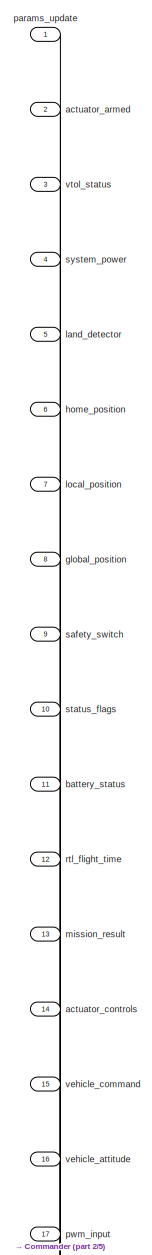
[diagram: root canvas - part 1/5, top left region]
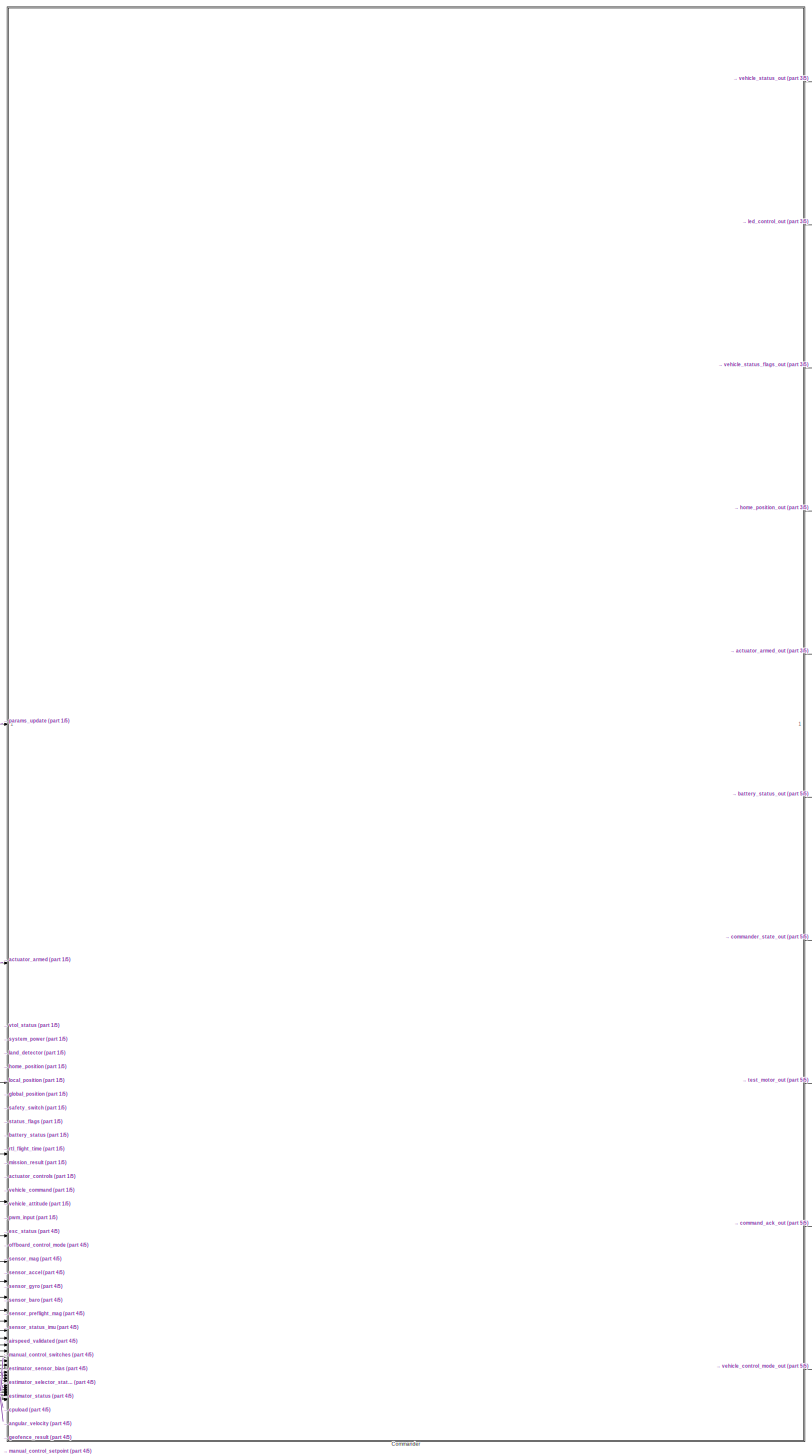
[diagram: root canvas - part 2/5, center side, full height]
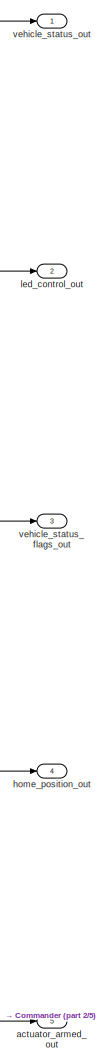
[diagram: root canvas - part 3/5, top right region]
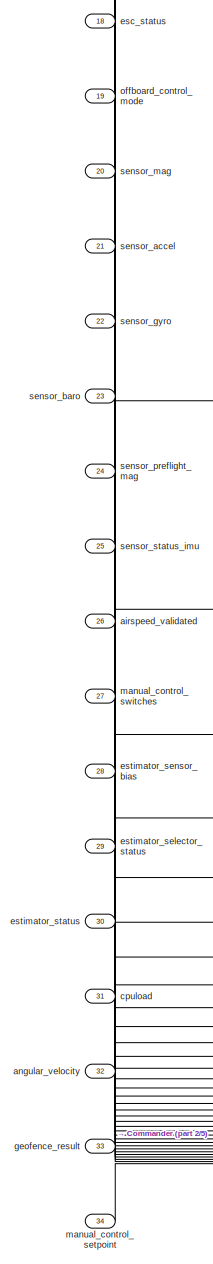
[diagram: root canvas - part 4/5, bottom left region]
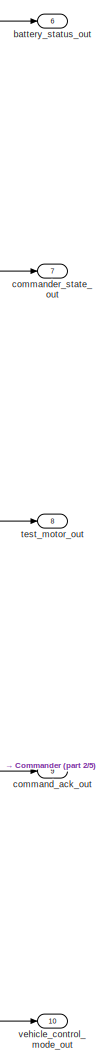
[diagram: root canvas - part 5/5, bottom right region]
MODEL slx_cd13cc20a061
KIND model
CONFIG AbsTol = auto
CONFIG EnableMultiTasking = off
CONFIG FixedStep = 0.5
CONFIG MaxStep = auto
CONFIG MinStep = auto
CONFIG RelTol = 1e-3
CONFIG SampleTimeConstraint = Unconstrained
CONFIG SolverName = FixedStepAuto
CONFIG StartTime = 0.0
CONFIG StopTime = 100
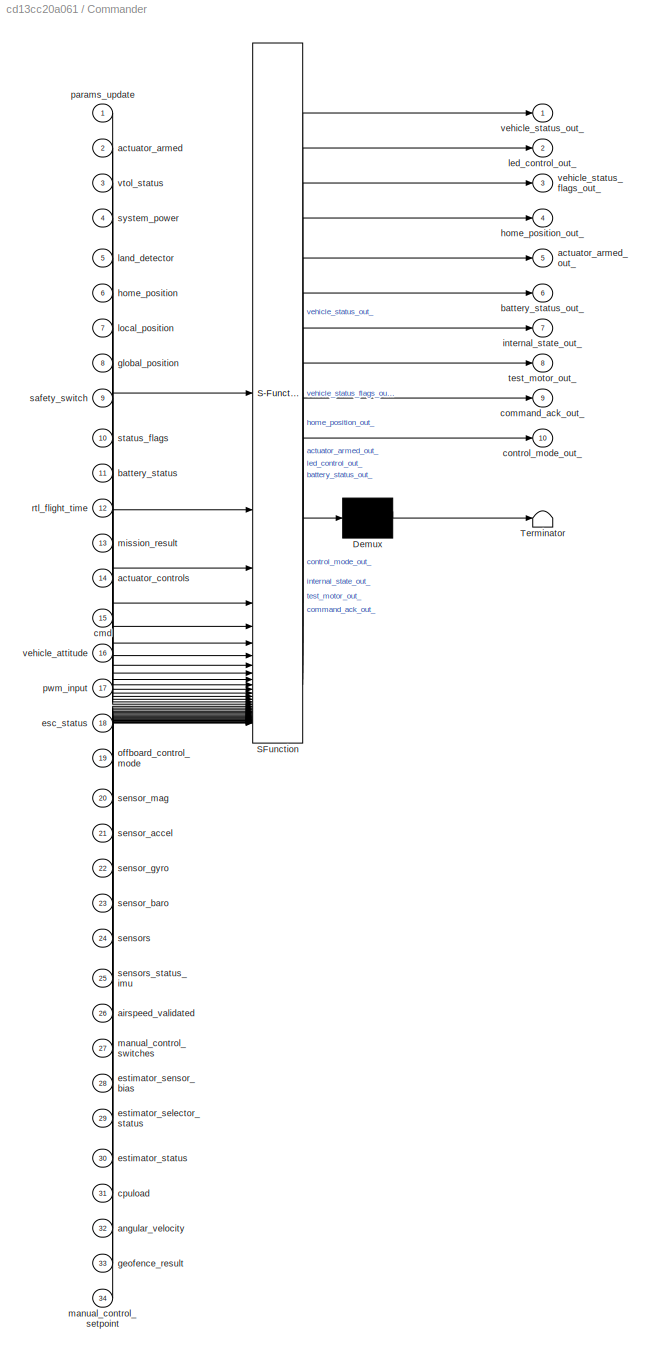
BLOCK [SubSystem] Commander
  ErrorFcn = Stateflow.Translate.translate
  PermitHierarchicalResolution = ExplicitOnly
  SFBlockType = Chart
  TreatAsAtomicUnit = on
BLOCK [Demux] Commander/ Demux 
  Outputs = 1
BLOCK [S-Function] Commander/ SFunction 
  EnableBusSupport = off
  FunctionName = sf_sfun
  Parameters = BAT_CRIT_THR,BAT_LOW_THR,CBRK_AIRSPD_CHK,CBRK_ENGINEFAIL,CBRK_FLIGHTTERM,CBRK_SUPPLY_CHK,CBRK_USB_CHK,CBRK_VELPOSERR,CBRK_VTOLARMING,COM_ARM_ARSP_EN,COM_ARM_AUTH_ID,COM_ARM_AUTH_MET,COM_ARM_AUTH_REQ,COM_ARM_AUTH_TO,COM_ARM_CHK_ESCS,COM_ARM_EKF_HGT,COM_ARM_EKF_POS,COM_ARM_EKF_VEL,COM_ARM_EKF_YAW,COM_ARM_IMU_ACC,COM_ARM_IMU_GYR,COM_ARM_MAG_ANG,COM_ARM_MAG_STR,COM_ARM_MIS_REQ,COM_ARM_SWISBTN,COM_ARM_...<+1529ch>
  PortCounts = [34 11]
  SFcnIsStateOwnerBlock = off
  SFunctionDeploymentMode = off
  Tag = Stateflow S-Function 3
BLOCK [Terminator] Commander/ Terminator 
BLOCK [Inport] Commander/actuator_armed
  Port = 2
BLOCK [Outport] Commander/actuator_armed_out_
  Port = 5
BLOCK [Inport] Commander/actuator_controls
  Port = 14
BLOCK [Inport] Commander/airspeed_validated
  Port = 26
BLOCK [Inport] Commander/angular_velocity
  Port = 32
BLOCK [Inport] Commander/battery_status
  Port = 11
BLOCK [Outport] Commander/battery_status_out_
  Port = 6
BLOCK [Inport] Commander/cmd
  Port = 15
BLOCK [Outport] Commander/command_ack_out_
  Port = 9
BLOCK [Outport] Commander/control_mode_out_
  Port = 10
BLOCK [Inport] Commander/cpuload
  Port = 31
BLOCK [Inport] Commander/esc_status
  Port = 18
BLOCK [Inport] Commander/estimator_selector_status
  Port = 29
BLOCK [Inport] Commander/estimator_sensor_bias
  Port = 28
BLOCK [Inport] Commander/estimator_status
  Port = 30
BLOCK [Inport] Commander/geofence_result
  Port = 33
BLOCK [Inport] Commander/global_position
  Port = 8
BLOCK [Inport] Commander/home_position
  Port = 6
BLOCK [Outport] Commander/home_position_out_
  Port = 4
BLOCK [Outport] Commander/internal_state_out_
  Port = 7
BLOCK [Inport] Commander/land_detector
  Port = 5
BLOCK [Outport] Commander/led_control_out_
  Port = 2
BLOCK [Inport] Commander/local_position
  Port = 7
BLOCK [Inport] Commander/manual_control_setpoint
  Port = 34
BLOCK [Inport] Commander/manual_control_switches
  Port = 27
BLOCK [Inport] Commander/mission_result
  Port = 13
BLOCK [Inport] Commander/offboard_control_mode
  Port = 19
BLOCK [Inport] Commander/params_update
BLOCK [Inport] Commander/pwm_input
  Port = 17
BLOCK [Inport] Commander/rtl_flight_time
  Port = 12
BLOCK [Inport] Commander/safety_switch
  Port = 9
BLOCK [Inport] Commander/sensor_accel
  Port = 21
BLOCK [Inport] Commander/sensor_baro
  Port = 23
BLOCK [Inport] Commander/sensor_gyro
  Port = 22
BLOCK [Inport] Commander/sensor_mag
  Port = 20
BLOCK [Inport] Commander/sensors
  Port = 24
BLOCK [Inport] Commander/sensors_status_imu
  Port = 25
BLOCK [Inport] Commander/status_flags
  Port = 10
BLOCK [Inport] Commander/system_power
  Port = 4
BLOCK [Outport] Commander/test_motor_out_
  Port = 8
BLOCK [Inport] Commander/vehicle_attitude
  Port = 16
BLOCK [Outport] Commander/vehicle_status_flags_out_
  Port = 3
BLOCK [Outport] Commander/vehicle_status_out_
BLOCK [Inport] Commander/vtol_status
  Port = 3
BLOCK [Inport] actuator_armed
  BusOutputAsStruct = on
  OutDataTypeStr = Bus: px4_actuator_armed
  Port = 2
BLOCK [Outport] actuator_armed_out
  BusOutputAsStruct = on
  OutDataTypeStr = Bus: px4_actuator_armed
  Port = 5
BLOCK [Inport] actuator_controls
  BusOutputAsStruct = on
  OutDataTypeStr = Bus: px4_actuator_controls
  Port = 14
BLOCK [Inport] airspeed_validated
  BusOutputAsStruct = on
  LockScale = on
  OutDataTypeStr = Bus: px4_airspeed_validated
  Port = 26
BLOCK [Inport] angular_velocity
  BusOutputAsStruct = on
  LockScale = on
  OutDataTypeStr = Bus: px4_vehicle_angular_velocity
  Port = 32
BLOCK [Inport] battery_status
  BusOutputAsStruct = on
  OutDataTypeStr = Bus: px4_battery_status
  Port = 11
BLOCK [Outport] battery_status_out
  BusOutputAsStruct = on
  OutDataTypeStr = Bus: px4_battery_status
  Port = 6
BLOCK [Outport] command_ack_out
  BusOutputAsStruct = on
  OutDataTypeStr = Bus: px4_vehicle_command_ack
  Port = 9
BLOCK [Outport] commander_state_out
  BusOutputAsStruct = on
  OutDataTypeStr = Bus: px4_commander_state
  Port = 7
BLOCK [Inport] cpuload
  BusOutputAsStruct = on
  LockScale = on
  OutDataTypeStr = Bus: px4_cpuload
  Port = 31
BLOCK [Inport] esc_status
  BusOutputAsStruct = on
  OutDataTypeStr = Bus: px4_esc_status
  Port = 18
BLOCK [Inport] estimator_selector_status
  BusOutputAsStruct = on
  LockScale = on
  OutDataTypeStr = Bus: px4_estimator_selector_status
  Port = 29
BLOCK [Inport] estimator_sensor_bias
  BusOutputAsStruct = on
  LockScale = on
  OutDataTypeStr = Bus: px4_estimator_sensor_bias
  Port = 28
BLOCK [Inport] estimator_status
  BusOutputAsStruct = on
  LockScale = on
  OutDataTypeStr = Bus: px4_estimator_status
  Port = 30
BLOCK [Inport] geofence_result
  BusOutputAsStruct = on
  LockScale = on
  OutDataTypeStr = Bus: px4_geofence_result
  Port = 33
BLOCK [Inport] global_position
  BusOutputAsStruct = on
  OutDataTypeStr = Bus: px4_vehicle_global_position
  Port = 8
BLOCK [Inport] home_position
  BusOutputAsStruct = on
  OutDataTypeStr = Bus: px4_home_position
  Port = 6
BLOCK [Outport] home_position_out
  BusOutputAsStruct = on
  OutDataTypeStr = Bus: px4_home_position
  Port = 4
BLOCK [Inport] land_detector
  BusOutputAsStruct = on
  OutDataTypeStr = Bus: px4_vehicle_land_detected
  Port = 5
BLOCK [Outport] led_control_out
  BusOutputAsStruct = on
  OutDataTypeStr = Bus: px4_led_control
  Port = 2
BLOCK [Inport] local_position
  BusOutputAsStruct = on
  OutDataTypeStr = Bus: px4_vehicle_local_position
  Port = 7
BLOCK [Inport] manual_control_setpoint
  BusOutputAsStruct = on
  LockScale = on
  OutDataTypeStr = Bus: px4_manual_control_setpoint
  Port = 34
BLOCK [Inport] manual_control_switches
  BusOutputAsStruct = on
  LockScale = on
  OutDataTypeStr = Bus: px4_manual_control_switches
  Port = 27
BLOCK [Inport] mission_result
  BusOutputAsStruct = on
  OutDataTypeStr = Bus: px4_mission_result
  Port = 13
BLOCK [Inport] offboard_control_mode
  BusOutputAsStruct = on
  OutDataTypeStr = Bus: px4_offboard_control_mode
  Port = 19
BLOCK [Inport] params_update
  BusOutputAsStruct = on
  OutDataTypeStr = Bus: px4_parameter_update
BLOCK [Inport] pwm_input
  BusOutputAsStruct = on
  OutDataTypeStr = Bus: px4_pwm_input
  Port = 17
BLOCK [Inport] rtl_flight_time
  BusOutputAsStruct = on
  OutDataTypeStr = Bus: px4_rtl_flight_time
  Port = 12
BLOCK [Inport] safety_switch
  BusOutputAsStruct = on
  OutDataTypeStr = Bus: px4_safety
  Port = 9
BLOCK [Inport] sensor_accel
  BusOutputAsStruct = on
  OutDataTypeStr = Bus: px4_sensor_accel
  Port = 21
  PortDimensions = 4
BLOCK [Inport] sensor_baro
  BusOutputAsStruct = on
  OutDataTypeStr = Bus: px4_sensor_baro
  Port = 23
  PortDimensions = 4
BLOCK [Inport] sensor_gyro
  BusOutputAsStruct = on
  OutDataTypeStr = Bus: px4_sensor_gyro
  Port = 22
  PortDimensions = 4
BLOCK [Inport] sensor_mag
  BusOutputAsStruct = on
  OutDataTypeStr = Bus: px4_sensor_mag
  Port = 20
  PortDimensions = 4
BLOCK [Inport] sensor_preflight_mag
  BusOutputAsStruct = on
  LockScale = on
  OutDataTypeStr = Bus: px4_sensor_preflight_mag
  Port = 24
BLOCK [Inport] sensor_status_imu
  BusOutputAsStruct = on
  LockScale = on
  OutDataTypeStr = Bus: px4_sensors_status_imu
  Port = 25
BLOCK [Inport] status_flags
  BusOutputAsStruct = on
  OutDataTypeStr = Bus: px4_vehicle_status_flags
  Port = 10
BLOCK [Inport] system_power
  BusOutputAsStruct = on
  OutDataTypeStr = Bus: px4_system_power
  Port = 4
BLOCK [Outport] test_motor_out
  BusOutputAsStruct = on
  OutDataTypeStr = Bus: px4_test_motor
  Port = 8
BLOCK [Inport] vehicle_attitude
  BusOutputAsStruct = on
  OutDataTypeStr = Bus: px4_vehicle_attitude
  Port = 16
BLOCK [Inport] vehicle_command
  BusOutputAsStruct = on
  OutDataTypeStr = Bus: px4_vehicle_command
  Port = 15
BLOCK [Outport] vehicle_control_mode_out
  BusOutputAsStruct = on
  OutDataTypeStr = Bus: px4_vehicle_control_mode
  Port = 10
BLOCK [Outport] vehicle_status_flags_out
  BusOutputAsStruct = on
  OutDataTypeStr = Bus: px4_vehicle_status_flags
  Port = 3
BLOCK [Outport] vehicle_status_out
  BusOutputAsStruct = on
  OutDataTypeStr = Bus: px4_vehicle_status
BLOCK [Inport] vtol_status
  BusOutputAsStruct = on
  OutDataTypeStr = Bus: px4_vtol_vehicle_status
  Port = 3
LINE Commander:1 -> vehicle_status_out:1
LINE Commander:10 -> vehicle_control_mode_out:1
LINE Commander:2 -> led_control_out:1
LINE Commander:3 -> vehicle_status_flags_out:1
LINE Commander:4 -> home_position_out:1
LINE Commander:5 -> actuator_armed_out:1
LINE Commander:6 -> battery_status_out:1
LINE Commander:7 -> commander_state_out:1
LINE Commander:8 -> test_motor_out:1
LINE Commander:9 -> command_ack_out:1
LINE actuator_armed:1 -> Commander:2
LINE actuator_controls:1 -> Commander:14
LINE airspeed_validated:1 -> Commander:26
LINE angular_velocity:1 -> Commander:32
LINE battery_status:1 -> Commander:11
LINE cpuload:1 -> Commander:31
LINE esc_status:1 -> Commander:18
LINE estimator_selector_status:1 -> Commander:29
LINE estimator_sensor_bias:1 -> Commander:28
LINE estimator_status:1 -> Commander:30
LINE geofence_result:1 -> Commander:33
LINE global_position:1 -> Commander:8
LINE home_position:1 -> Commander:6
LINE land_detector:1 -> Commander:5
LINE local_position:1 -> Commander:7
LINE manual_control_setpoint:1 -> Commander:34
LINE manual_control_switches:1 -> Commander:27
LINE mission_result:1 -> Commander:13
LINE offboard_control_mode:1 -> Commander:19
LINE params_update:1 -> Commander:1
LINE pwm_input:1 -> Commander:17
LINE rtl_flight_time:1 -> Commander:12
LINE safety_switch:1 -> Commander:9
LINE sensor_accel:1 -> Commander:21
LINE sensor_baro:1 -> Commander:23
LINE sensor_gyro:1 -> Commander:22
LINE sensor_mag:1 -> Commander:20
LINE sensor_preflight_mag:1 -> Commander:24
LINE sensor_status_imu:1 -> Commander:25
LINE status_flags:1 -> Commander:10
LINE system_power:1 -> Commander:4
LINE vehicle_attitude:1 -> Commander:16
LINE vehicle_command:1 -> Commander:15
LINE vtol_status:1 -> Commander:3
CHART Commander states=184 transitions=786
  STATE_LABEL 'ret = is_vtol_tailsitter(current_status)'
  STATE_LABEL 'SCRIPT:\nfunction ret = is_vtol_tailsitter(current_status)\n\nret = (current_status.system_type == VEHICLE_TYPE_VTOL_DUOROTOR || ...\n    current_status.system_type == VEHICLE_TYPE_VTOL_QUADROTOR);\n\nend\n\n\n'
  STATE_LABEL 'ret = is_rotary_wing(current_status)'
  STATE_LABEL 'SCRIPT:\nfunction ret = is_rotary_wing(current_status)\n\nret = is_multirotor(current_status) || ...\n    (current_status.system_type == VEHICLE_TYPE_HELICOPTER) || ...\n    (current_status.system_type == VEHICLE_TYPE_COAXIAL);\n\nend\n\n\n'
  STATE_LABEL 'ret = is_vtol(current_status)'
  STATE_LABEL 'SCRIPT:\nfunction ret = is_vtol(current_status)\n\nret = (current_status.system_type == VEHICLE_TYPE_VTOL_DUOROTOR || ...\n    current_status.system_type == VEHICLE_TYPE_VTOL_QUADROTOR || ...\n    current_status.system_type == VEHICLE_TYPE_VTOL_TILTROTOR || ...\n    current_status.system_type == VEHICLE_TYPE_VTOL_RESERVED2 || ...\n    current_status.system_type == VEHICLE_TYPE_VTOL_RESERVED3 || ...\n    c...<+135ch>'
  STATE_LABEL 'initialize\nen:\ncommander_init();\nmission_init();\nled_init();\nbuzzer_init();\nget_circuit_breaker_params();\nvehicle_type_init();\narm_auth_init();'
  STATE_LABEL '1. 后续删除commander_init()中的zero函数'
  STATE_LABEL 'commander_init'
  STATE_LABEL 'SCRIPT:\nfunction commander_init()\n\nactuator_armed_out_ = actuator_armed;\nbattery_status_out_ = battery_status;\nhome_position_out_ = home_position;\ncontrol_mode_out_ = px4_vehicle_control_mode_zero();\ninternal_state_out_ = px4_commander_state_zero();\n\n% default landed\nland_detector_.landed = true;\n\n% XXX for now just set sensors as initialized\nvehicle_status_flags_out_.condition_system_sensors_init...<+1041ch>'
  STATE_LABEL 'mission_init'
  STATE_LABEL 'SCRIPT:\nfunction mission_init()\n\n% init mission state, do it here to allow navigator to use stored mission even if mavlink failed to start\n% there need to publish "mission_s topic" !!!\n\nend\n\n\n'
  STATE_LABEL 'buzzer_init'
  STATE_LABEL 'SCRIPT:\nfunction buzzer_init()\n\ntune_durations_(uint8(PX4_TUNE_CONTROL.TUNE_ID_NOTIFY_POSITIVE)) = 800000;\ntune_durations_(uint8(PX4_TUNE_CONTROL.TUNE_ID_NOTIFY_NEGATIVE)) = 900000;\ntune_durations_(uint8(PX4_TUNE_CONTROL.TUNE_ID_NOTIFY_NEUTRAL)) = 500000;\ntune_durations_(uint8(PX4_TUNE_CONTROL.TUNE_ID_ARMING_WARNING)) = 3000000;\ntune_durations_(uint8(PX4_TUNE_CONTROL.TUNE_ID_HOME_SET)) = 800000;\nt...<+350ch>'
  STATE_LABEL 'led_init'
  STATE_LABEL 'SCRIPT:\nfunction led_init()\n\nblink_msg_end = 0;\nled_control_out_.led_mask = 0xff;\nled_control_out_.mode = uint8(PX4_LED_CONTROL.MODE_OFF);\nled_control_out_.priority = uint8(0);\nled_control_out_.timestamp = uint64(getSimulationTime * 1e+6);\n\n% led_control_pub = orb_advertise_queue(ORB_ID(led_control), &led_control, led_control_s::ORB_QUEUE_LENGTH);\n%\n% /* first open normal LEDs */\n% fd_leds = px4_o...<+790ch>'
  STATE_LABEL 'vehicle_type_init'
  STATE_LABEL 'SCRIPT:\nfunction vehicle_type_init()\n\nvehicle_status_out_.system_type = uint8(MAV_TYPE);\n\nif is_rotary_wing(vehicle_status_out_) || is_vtol(vehicle_status_out_)\n    vehicle_status_out_.vehicle_type = uint8(PX4_VEHICLE_STATUS.VEHICLE_TYPE_ROTARY_WING);\nelseif is_fixed_wing(vehicle_status_out_)\n    vehicle_status_out_.vehicle_type = uint8(PX4_VEHICLE_STATUS.VEHICLE_TYPE_FIXED_WING);\nelseif is_ground...<+410ch>'
  STATE_LABEL 'arm_auth_init'
  STATE_LABEL 'SCRIPT:\nfunction arm_auth_init()\n\ntimeout = single(0.0);\ntimeout = COM_ARM_AUTH_TO;\nparam_com_arm_auth_timout_ = uint64(timeout*1e+6);\n\nauth_method = int32(PX4_ARM_AUTH_METHODS.ARM_AUTH_METHOD_ARM_REQ);\nauth_method = COM_ARM_AUTH_MET;\n\n% 如果是两步解锁\nif (auth_method >= 0) && (auth_method < int32(PX4_ARM_AUTH_METHODS.ARM_AUTH_METHOD_LAST))\n    param_com_arm_auth_method_ = auth_method;\nelse\n    param_com...<+258ch>'
  STATE_LABEL '1. 后续删除commander_init()中的zero函数'
  STATE_LABEL 'commander_init'
  STATE_LABEL 'SCRIPT:\nfunction commander_init()\n\nactuator_armed_out_ = actuator_armed;\nbattery_status_out_ = battery_status;\nhome_position_out_ = home_position;\ncontrol_mode_out_ = px4_vehicle_control_mode_zero();\ninternal_state_out_ = px4_commander_state_zero();\n\n% default landed\nland_detector_.landed = true;\n\n% XXX for now just set sensors as initialized\nvehicle_status_flags_out_.condition_system_sensors_init...<+1041ch>'
  STATE_LABEL 'mission_init'
  STATE_LABEL 'SCRIPT:\nfunction mission_init()\n\n% init mission state, do it here to allow navigator to use stored mission even if mavlink failed to start\n% there need to publish "mission_s topic" !!!\n\nend\n\n\n'
  STATE_LABEL 'buzzer_init'
  STATE_LABEL 'SCRIPT:\nfunction buzzer_init()\n\ntune_durations_(uint8(PX4_TUNE_CONTROL.TUNE_ID_NOTIFY_POSITIVE)) = 800000;\ntune_durations_(uint8(PX4_TUNE_CONTROL.TUNE_ID_NOTIFY_NEGATIVE)) = 900000;\ntune_durations_(uint8(PX4_TUNE_CONTROL.TUNE_ID_NOTIFY_NEUTRAL)) = 500000;\ntune_durations_(uint8(PX4_TUNE_CONTROL.TUNE_ID_ARMING_WARNING)) = 3000000;\ntune_durations_(uint8(PX4_TUNE_CONTROL.TUNE_ID_HOME_SET)) = 800000;\nt...<+350ch>'
  STATE_LABEL 'led_init'
  STATE_LABEL 'SCRIPT:\nfunction led_init()\n\nblink_msg_end = 0;\nled_control_out_.led_mask = 0xff;\nled_control_out_.mode = uint8(PX4_LED_CONTROL.MODE_OFF);\nled_control_out_.priority = uint8(0);\nled_control_out_.timestamp = uint64(getSimulationTime * 1e+6);\n\n% led_control_pub = orb_advertise_queue(ORB_ID(led_control), &led_control, led_control_s::ORB_QUEUE_LENGTH);\n%\n% /* first open normal LEDs */\n% fd_leds = px4_o...<+790ch>'
  STATE_LABEL 'vehicle_type_init'
  STATE_LABEL 'SCRIPT:\nfunction vehicle_type_init()\n\nvehicle_status_out_.system_type = uint8(MAV_TYPE);\n\nif is_rotary_wing(vehicle_status_out_) || is_vtol(vehicle_status_out_)\n    vehicle_status_out_.vehicle_type = uint8(PX4_VEHICLE_STATUS.VEHICLE_TYPE_ROTARY_WING);\nelseif is_fixed_wing(vehicle_status_out_)\n    vehicle_status_out_.vehicle_type = uint8(PX4_VEHICLE_STATUS.VEHICLE_TYPE_FIXED_WING);\nelseif is_ground...<+410ch>'
  STATE_LABEL 'arm_auth_init'
  STATE_LABEL 'SCRIPT:\nfunction arm_auth_init()\n\ntimeout = single(0.0);\ntimeout = COM_ARM_AUTH_TO;\nparam_com_arm_auth_timout_ = uint64(timeout*1e+6);\n\nauth_method = int32(PX4_ARM_AUTH_METHODS.ARM_AUTH_METHOD_ARM_REQ);\nauth_method = COM_ARM_AUTH_MET;\n\n% 如果是两步解锁\nif (auth_method >= 0) && (auth_method < int32(PX4_ARM_AUTH_METHODS.ARM_AUTH_METHOD_LAST))\n    param_com_arm_auth_method_ = auth_method;\nelse\n    param_com...<+258ch>'
  STATE_LABEL 'parameters_update\nen,du:\ncom_params_update();\n'
  STATE_LABEL 'com_params_update'
  STATE_LABEL 'SCRIPT:\nfunction com_params_update\n\n% enable avoidance flags\nvehicle_status_flags_out_.avoidance_system_required = boolean(COM_OBS_AVOID);\n\nif hasChanged(params_update.timestamp) || param_init_forced_\n\n    % parameters that can only be modified in unlocked state\n    if ~actuator_armed.armed\n        is_rotary = is_rotary_wing(vehicle_status_out_) || (is_vtol(vehicle_status_out_) && vtol_status.vtol...<+2266ch>'
  STATE_LABEL 'com_params_update'
  STATE_LABEL 'SCRIPT:\nfunction com_params_update\n\n% enable avoidance flags\nvehicle_status_flags_out_.avoidance_system_required = boolean(COM_OBS_AVOID);\n\nif hasChanged(params_update.timestamp) || param_init_forced_\n\n    % parameters that can only be modified in unlocked state\n    if ~actuator_armed.armed\n        is_rotary = is_rotary_wing(vehicle_status_out_) || (is_vtol(vehicle_status_out_) && vtol_status.vtol...<+2266ch>'
  STATE_LABEL 'pre_flight_check\nen,du:\n% 该模块对外输出变量boolean(preflight_check_res_)，true表示起飞检查通过；false表示起飞检查失败\n% report_failures_包括以下模块的错误\nreport_failures_ = (report_failures_ && vehicle_status_flags_out_.condition_system_hotplug_timeout && ...\n    ~vehicle_status_flags_out_.condition_calibration_enabled);\n% 初始化阶段（暂时写为1s）该模块不报错\nif uint64(getSimulationTime*1e+6) < 1e+6\n    report_failures_ = false;\n    prearm_ = true...<+6ch>'
  STATE_LABEL 'airframeCheck'
CHART  states=0 transitions=0
